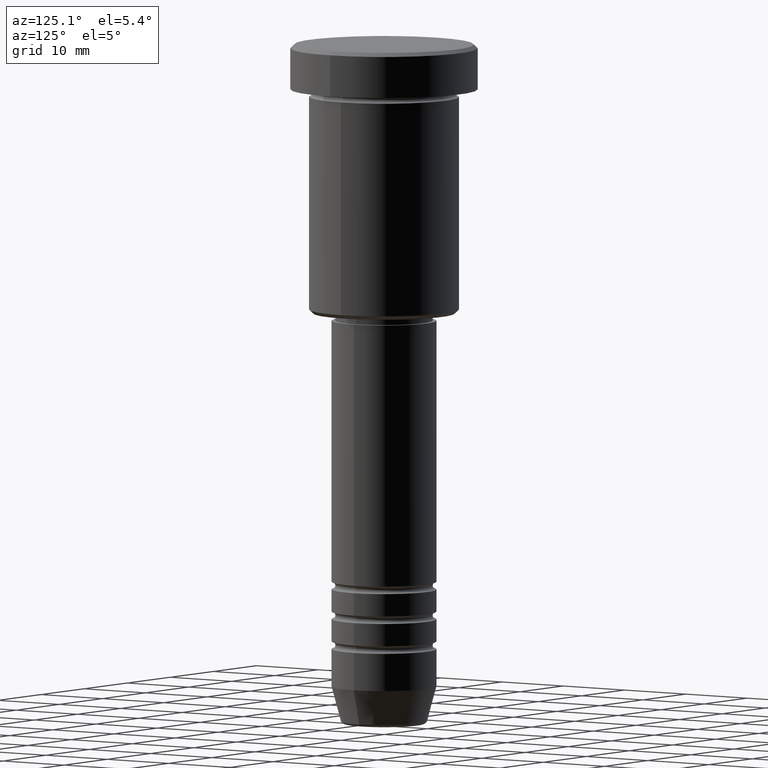
[diagram: clean part render]
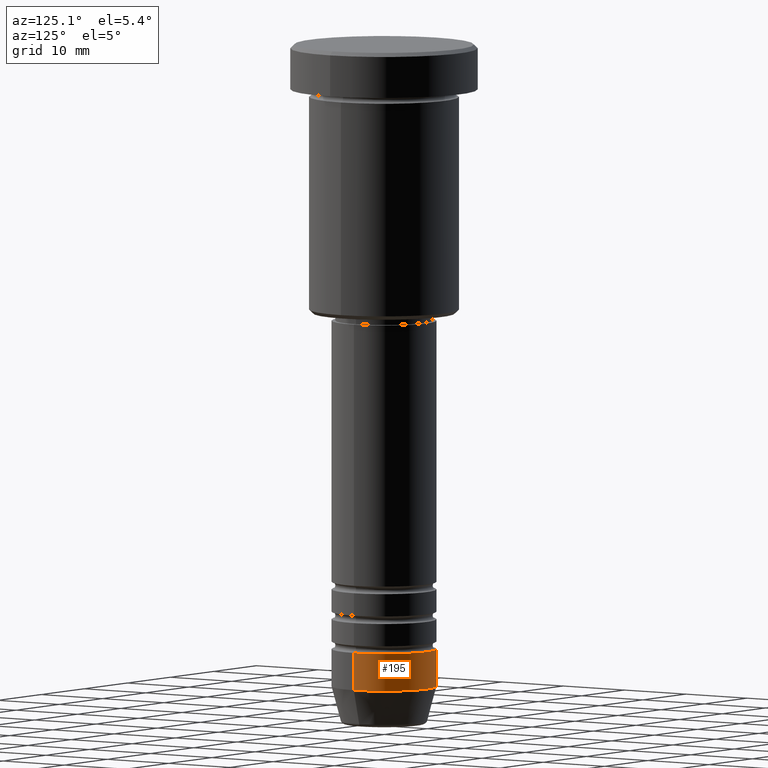
[diagram: same view with one face highlighted and labeled with its STEP entity id]
A machine part, auxiliary view. The second image highlights one B-rep face of the part: STEP entity #195.
In plain terms, the highlighted cylindrical surface (partial cylindrical patch) has radius 7 mm, axis along (-0, -0, 1).
Its self-contained STEP definition (entity closure, byte-faithful):
#81 = CYLINDRICAL_SURFACE ( 'NONE', #347, 7.000000000000000000 ) ;
#106 = AXIS2_PLACEMENT_3D ( 'NONE', #1076, #257, #275 ) ;
#130 = ORIENTED_EDGE ( 'NONE', *, *, #666, .F. ) ;
#139 = VECTOR ( 'NONE', #194, 1000.000000000000000 ) ;
#194 = DIRECTION ( 'NONE',  ( -0.000000000000000000, -0.000000000000000000, 1.000000000000000000 ) ) ;
#195 = ADVANCED_FACE ( 'NONE', ( #643 ), #81, .T. ) ;
#221 = ORIENTED_EDGE ( 'NONE', *, *, #820, .T. ) ;
#229 = VERTEX_POINT ( 'NONE', #1099 ) ;
#257 = DIRECTION ( 'NONE',  ( -0.000000000000000000, -0.000000000000000000, 1.000000000000000000 ) ) ;
#260 = DIRECTION ( 'NONE',  ( -0.000000000000000000, -0.000000000000000000, 1.000000000000000000 ) ) ;
#275 = DIRECTION ( 'NONE',  ( 1.000000000000000000, 0.000000000000000000, 0.000000000000000000 ) ) ;
#347 = AXIS2_PLACEMENT_3D ( 'NONE', #636, #260, #568 ) ;
#390 = VERTEX_POINT ( 'NONE', #859 ) ;
#393 = LINE ( 'NONE', #660, #139 ) ;
#398 = VECTOR ( 'NONE', #976, 1000.000000000000000 ) ;
#437 = CIRCLE ( 'NONE', #106, 7.000000000000000000 ) ;
#568 = DIRECTION ( 'NONE',  ( 1.000000000000000000, 0.000000000000000000, 0.000000000000000000 ) ) ;
#619 = EDGE_LOOP ( 'NONE', ( #221, #848, #928, #130 ) ) ;
#636 = CARTESIAN_POINT ( 'NONE',  ( 0.000000000000000000, 0.000000000000000000, 0.000000000000000000 ) ) ;
#638 = LINE ( 'NONE', #801, #398 ) ;
#643 = FACE_OUTER_BOUND ( 'NONE', #619, .T. ) ;
#660 = CARTESIAN_POINT ( 'NONE',  ( 7.000000000000000000, 0.000000000000000000, 0.000000000000000000 ) ) ;
#664 = VERTEX_POINT ( 'NONE', #1112 ) ;
#666 = EDGE_CURVE ( 'NONE', #390, #229, #393, .T. ) ;
#685 = AXIS2_PLACEMENT_3D ( 'NONE', #1003, #810, #729 ) ;
#729 = DIRECTION ( 'NONE',  ( 1.000000000000000000, 0.000000000000000000, 0.000000000000000000 ) ) ;
#761 = CIRCLE ( 'NONE', #685, 7.000000000000000000 ) ;
#801 = CARTESIAN_POINT ( 'NONE',  ( -7.000000000000000000, 8.572527594031473190E-16, 0.000000000000000000 ) ) ;
#810 = DIRECTION ( 'NONE',  ( -0.000000000000000000, -0.000000000000000000, 1.000000000000000000 ) ) ;
#820 = EDGE_CURVE ( 'NONE', #390, #664, #761, .T. ) ;
#848 = ORIENTED_EDGE ( 'NONE', *, *, #1034, .T. ) ;
#859 = CARTESIAN_POINT ( 'NONE',  ( 7.000000000000000000, 0.000000000000000000, -86.00000000000000000 ) ) ;
#896 = EDGE_CURVE ( 'NONE', #229, #983, #437, .T. ) ;
#928 = ORIENTED_EDGE ( 'NONE', *, *, #896, .F. ) ;
#938 = CARTESIAN_POINT ( 'NONE',  ( -7.000000000000000000, 8.572527594031473190E-16, -80.99999999999998579 ) ) ;
#976 = DIRECTION ( 'NONE',  ( -0.000000000000000000, -0.000000000000000000, 1.000000000000000000 ) ) ;
#983 = VERTEX_POINT ( 'NONE', #938 ) ;
#1003 = CARTESIAN_POINT ( 'NONE',  ( 0.000000000000000000, 0.000000000000000000, -86.00000000000000000 ) ) ;
#1034 = EDGE_CURVE ( 'NONE', #664, #983, #638, .T. ) ;
#1076 = CARTESIAN_POINT ( 'NONE',  ( 0.000000000000000000, 0.000000000000000000, -80.99999999999998579 ) ) ;
#1099 = CARTESIAN_POINT ( 'NONE',  ( 7.000000000000000000, 0.000000000000000000, -80.99999999999998579 ) ) ;
#1112 = CARTESIAN_POINT ( 'NONE',  ( -7.000000000000000000, 8.572527594031473190E-16, -86.00000000000000000 ) ) ;